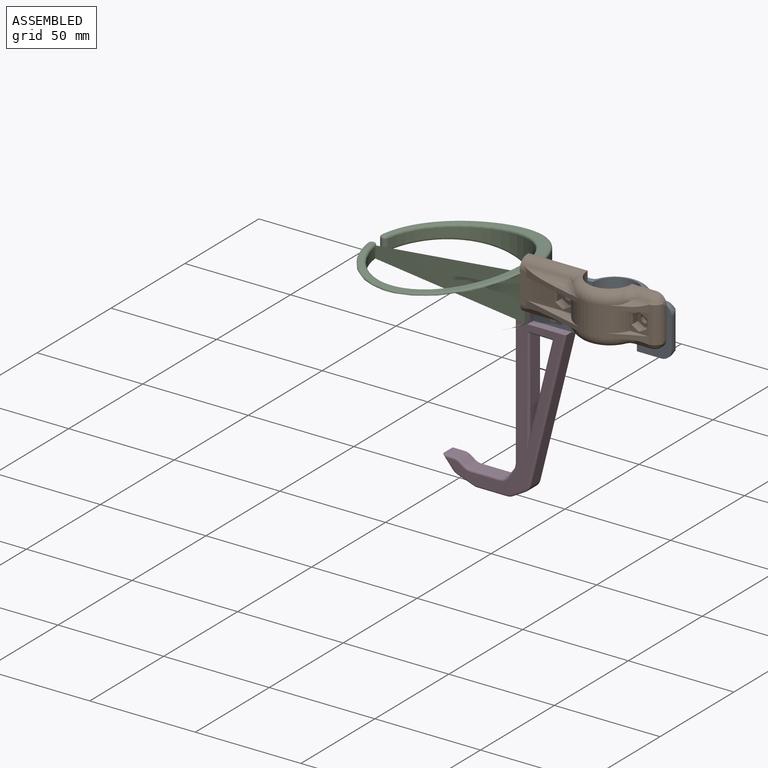
[diagram: assembled view]
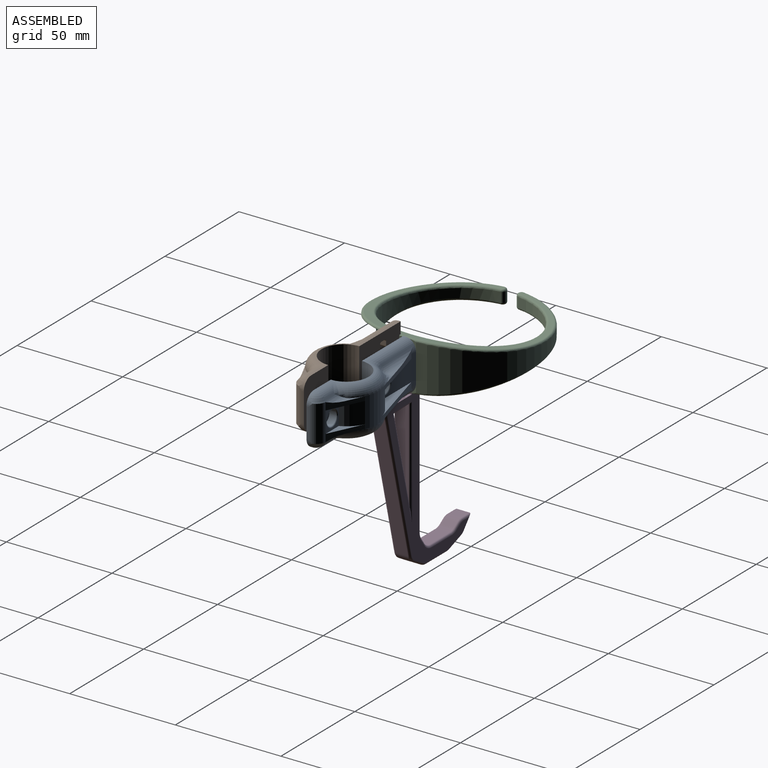
[diagram: assembled view, second angle]
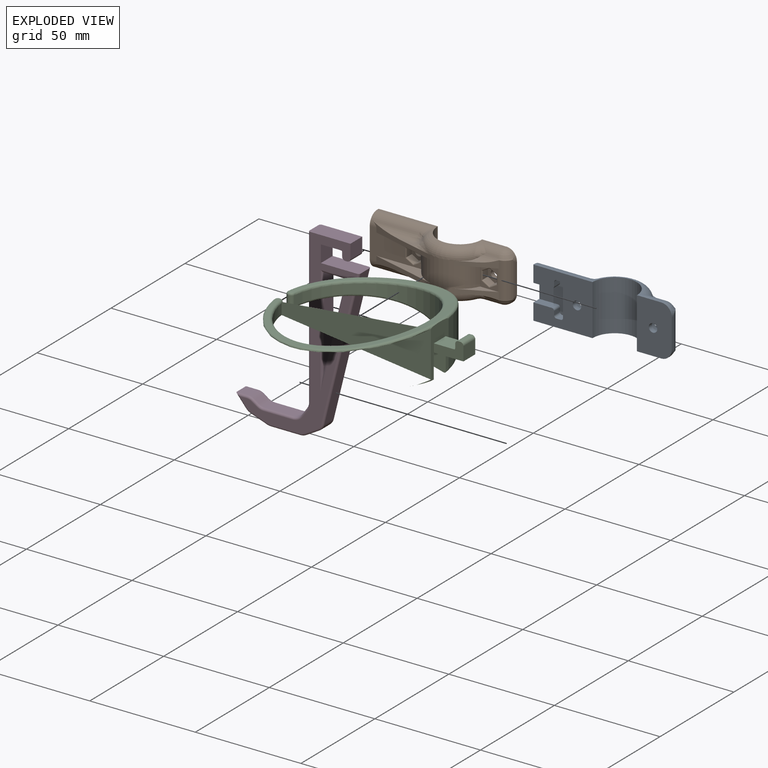
[diagram: exploded view]
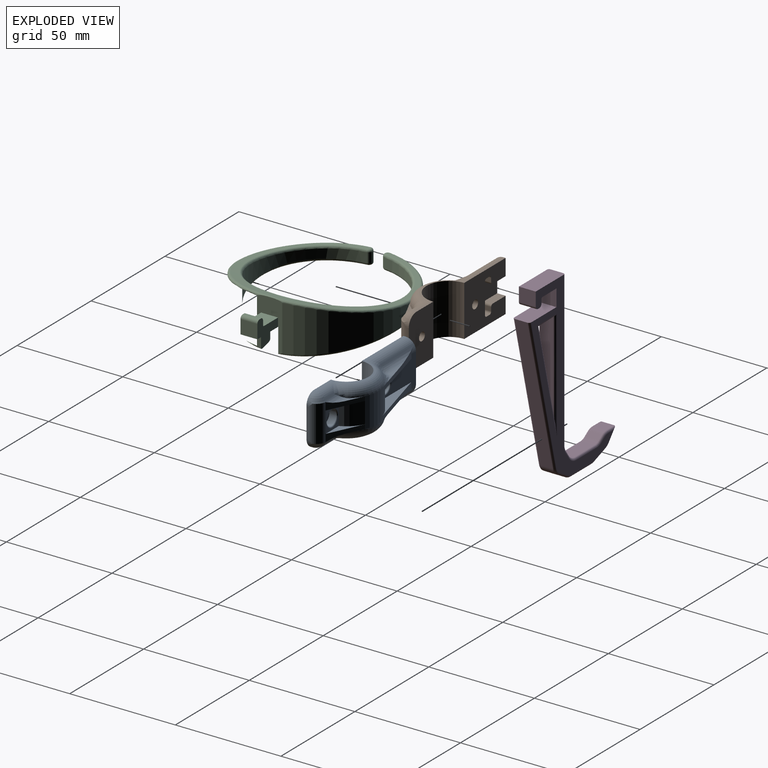
[diagram: exploded view, second angle]
ASSEMBLY  parts=3 mates=2
PART A: 76 faces, bbox 72.4x18.8x26.5 mm
  f0: cylinder r=15mm len=27.5mm, axis (0,0,-1), area 391mm2, adj f2,f4,f17,f18,f46,f49,f51,f52
  f1: cylinder r=5mm len=17.19mm, axis (0,0,1), area 127.7mm2, adj f2,f12,f19,f22,f31,f46,f48,f54
  f2: plane 10x8.25mm, normal (0,1,0), area 32.4mm2, adj f0,f1,f30,f46,f54
  f3: plane 24x6mm, normal (-1,0,0), area 99.7mm2, adj f4,f7,f8,f9,f15,f16,f32,f44
  f4: plane 24.75x14mm, normal (0,1,0), area 209.8mm2, adj f0,f3,f15,f16,f29,f51,f52,f57
  f5: cylinder r=2mm len=4mm, axis (0,1,0), area 27.6mm2, adj f9,f28
  f6: cylinder r=2mm len=4mm, axis (0,1,0), area 27.6mm2, adj f11,f26
  f7: plane 28.05x1mm, normal (0,0,1), area 28mm2, adj f3,f9,f10,f15
  f8: plane 28.05x1mm, normal (0,0,-1), area 28mm2, adj f3,f9,f10,f16
  f9: plane 28x24mm, normal (0,-1,0), area 508.7mm2, adj f3,f5,f7,f8,f10,f32,f33,f34
  f10: cylinder r=10.5mm len=24mm, axis (0,0,-1), area 790.2mm2, adj f7,f8,f9,f11,f13,f14,f15,f16
  f11: plane 24x16.5mm, normal (0,-1,0), area 372.7mm2, adj f6,f10,f12,f13,f14,f19,f22
  f12: plane 14x1mm, normal (1,0,0), area 14mm2, adj f1,f11,f19,f22
  f13: plane 11.55x1mm, normal (0,0,1), area 11.5mm2, adj f10,f11,f19,f20
  f14: plane 11.55x1mm, normal (0,0,-1), area 11.5mm2, adj f10,f11,f21,f22
  f15: cylinder r=5mm len=28.08mm, axis (1,0,0), area 136.9mm2, adj f3,f4,f7,f10,f59,f68,f70
  f16: cylinder r=5mm len=28.08mm, axis (-1,0,0), area 136.9mm2, adj f3,f4,f8,f10,f51,f71,f72
  f17: torus R=10mm, axis (0,0,1), area 201.4mm2, adj f0,f10,f53,f63,f64,f66,f67,f68
  f18: torus R=10mm, axis (0,0,1), area 201.4mm2, adj f0,f10,f47,f60,f61,f72,f74,f75
  f19: cylinder r=5mm len=5mm, axis (0,-1,0), area 9.9mm2, adj f1,f11,f12,f13,f23,f65
  f20: cylinder r=5mm len=11.58mm, axis (1,0,0), area 44.5mm2, adj f10,f13,f23,f63,f64
  f21: cylinder r=5mm len=11.58mm, axis (-1,0,0), area 44.5mm2, adj f10,f14,f24,f60,f61
  f22: cylinder r=5mm len=5mm, axis (0,1,0), area 9.9mm2, adj f1,f11,f12,f14,f24,f62
  f23: sphere r=5mm, area 23.6mm2, adj f19,f20,f65
  f24: sphere r=5mm, area 12.8mm2, adj f21,f22,f62
  f25: cylinder r=3.5mm len=7mm, axis (0,1,0), area 72.6mm2, adj f26,f30,f31
  f26: plane 7x7mm, normal (0,1,0), area 25.9mm2, adj f6,f25
  f27: cylinder r=3.5mm len=7mm, axis (0,1,0), area 72.6mm2, adj f28,f29
  f28: plane 7x7mm, normal (0,1,0), area 25.9mm2, adj f5,f27
  f29: torus R=4mm, axis (0,1,0), area 18.2mm2, adj f4,f27
  f30: torus R=4mm, axis (0,1,0), area 16.7mm2, adj f2,f25,f31
  f31: bspline ~3.6x0.89mm, area 1.5mm2, adj f1,f25,f30
  f32: plane 8.73x4mm, normal (0,0,1), area 34.9mm2, adj f3,f9,f33,f45
  f33: cylinder r=1.07mm len=4mm, axis (0,-1,0), area 6.7mm2, adj f9,f32,f34,f45
  f34: plane 4x1.86mm, normal (1,0,0), area 7.5mm2, adj f9,f33,f35,f45
  f35: cylinder r=1.07mm len=4mm, axis (0,-1,0), area 6.7mm2, adj f9,f34,f36,f45
  f36: plane 4x2.06mm, normal (0,0,1), area 8.3mm2, adj f9,f35,f37,f45
  f37: cylinder r=1.07mm len=4mm, axis (0,-1,0), area 6.7mm2, adj f9,f36,f38,f45
  f38: plane 14.26x4mm, normal (-1,0,0), area 57.1mm2, adj f9,f37,f39,f45
  f39: cylinder r=1.07mm len=4mm, axis (0,-1,0), area 6.7mm2, adj f9,f38,f40,f45
  f40: plane 4x2.06mm, normal (0,0,-1), area 8.3mm2, adj f9,f39,f41,f45
  f41: cylinder r=1.07mm len=4mm, axis (0,-1,0), area 6.7mm2, adj f9,f40,f42,f45
  f42: plane 4x1.86mm, normal (1,0,0), area 7.5mm2, adj f9,f41,f43,f45
  f43: cylinder r=1.07mm len=4mm, axis (0,-1,0), area 6.7mm2, adj f9,f42,f44,f45
  f44: plane 8.73x4mm, normal (0,0,-1), area 34.9mm2, adj f3,f9,f43,f45
  f45: plane 16.4x14mm, normal (0,-1,0), area 150.7mm2, adj f3,f32,f33,f34,f35,f36,f37,f38
  f46: plane 16.02x7.51mm, normal (0,0,1), area 26.5mm2, adj f0,f1,f2,f48,f49
  f47: plane 8.13x3.81mm, normal (0,0,-1), area 4.9mm2, adj f18,f48,f49,f61
  f48: plane 16.47x8.01mm, normal (0.42,0.91,0), area 39.5mm2, adj f1,f46,f47,f49,f61,f62
  f49: plane 2x0.1mm, normal (0.4,0.91,0), area 0.2mm2, adj f0,f46,f47,f48
  f50: plane 7.16x1.93mm, normal (0,0,-1), area 5.6mm2, adj f51,f71,f75
  f51: plane 36.47x11.69mm, normal (-0.26,0.97,0), area 72.9mm2, adj f0,f4,f16,f50,f52,f71,f74
  f52: plane 31.45x8.48mm, normal (0,0,1), area 78.7mm2, adj f0,f4,f51
  f53: plane 8.13x3.81mm, normal (0,0,1), area 4.9mm2, adj f17,f55,f56,f64
  f54: plane 16.02x7.51mm, normal (0,0,-1), area 26.5mm2, adj f0,f1,f2,f55,f56
  f55: plane 16.47x8.01mm, normal (0.42,0.91,0), area 39.5mm2, adj f1,f53,f54,f56,f64,f65
  f56: plane 2x0.1mm, normal (0.4,0.91,0), area 0.2mm2, adj f0,f53,f54,f55
  f57: plane 31.45x8.48mm, normal (0,0,-1), area 78.7mm2, adj f0,f4,f59
  f58: plane 7.16x1.93mm, normal (0,0,1), area 5.6mm2, adj f59,f67,f70
  f59: plane 36.47x11.69mm, normal (-0.26,0.97,0), area 72.9mm2, adj f0,f4,f15,f57,f58,f66,f70
  f60: bspline ~7.25x6.76mm, area 22.4mm2, adj f10,f18,f21,f61
  f61: cylinder r=5mm len=10.53mm, axis (-1,0,0), area 30.2mm2, adj f18,f21,f47,f48,f60,f62
  f62: torus R=8.66mm, axis (0,0,1), area 7.5mm2, adj f1,f22,f24,f48,f61
  f63: bspline ~7.25x6.76mm, area 22.4mm2, adj f10,f17,f20,f64
  f64: cylinder r=5mm len=10.53mm, axis (1,0,0), area 30.2mm2, adj f17,f20,f53,f55,f63,f65
  f65: torus R=8.66mm, axis (0,0,1), area 7.5mm2, adj f1,f19,f23,f55,f64
  f66: bspline ~11.02x5.82mm, area 15.7mm2, adj f17,f59,f67
  f67: torus R=18.66mm, axis (0,0,1), area 10.7mm2, adj f17,f58,f66,f69
  f68: bspline ~6.79x6.35mm, area 17mm2, adj f10,f15,f17,f69
  f69: sphere r=5mm, area 8.4mm2, adj f67,f68,f70
  f70: cylinder r=5mm len=21.88mm, axis (1,0,0), area 72.5mm2, adj f15,f58,f59,f69
  f71: cylinder r=5mm len=21.88mm, axis (-1,0,0), area 72.5mm2, adj f16,f50,f51,f73
  f72: bspline ~6.58x6.16mm, area 17mm2, adj f10,f16,f18,f73
  f73: sphere r=5mm, area 12.8mm2, adj f71,f72,f75
  f74: bspline ~11.02x5.82mm, area 15.7mm2, adj f18,f51,f75
  f75: torus R=18.66mm, axis (0,0,1), area 10.7mm2, adj f18,f50,f73,f74
PART B: 43 faces, bbox 189.8x176.4x124.4 mm
  f0: cylinder r=245.88mm len=73.21mm, axis (0,1,0), area 313mm2, adj f1,f2,f22,f42
  f1: bspline ~75.91x37.6mm, area 180mm2, adj f0,f4,f11,f21,f42
  f2: bspline ~67.62x34.44mm, area 146.1mm2, adj f0,f6,f23,f42
  f3: cylinder r=38mm len=75.25mm, axis (0,0,-1), area 1168.8mm2, adj f11,f15
  f4: cylinder r=38mm len=75.25mm, axis (0,0,-1), area 1094.4mm2, adj f1,f11,f20,f32
  f5: cylinder r=1.77mm len=4.83mm, axis (0,0,-1), area 24.5mm2, adj f20,f22,f24,f38
  f6: cylinder r=33mm len=66mm, axis (0,0,-1), area 1887.6mm2, adj f2,f14,f19,f24,f33,f40,f41,f42
  f7: cylinder r=1.77mm len=4.83mm, axis (0,0,-1), area 24.5mm2, adj f15,f17,f19,f35
  f8: plane 14x8mm, normal (0,-1,0), area 70.7mm2, adj f9,f11,f25,f26,f27,f28,f29,f30
  f9: plane 8x6.5mm, normal (1,0,0), area 52mm2, adj f8,f10,f29,f40
  f10: plane 14x8mm, normal (0,1,0), area 70.7mm2, adj f9,f11,f25,f26,f27,f28,f29,f30
  f11: plane 123.58x112.38mm, normal (1,0,0), area 149.4mm2, adj f1,f3,f4,f8,f10,f13,f25,f32
  f12: cylinder r=245.88mm len=73.21mm, axis (0,1,0), area 313mm2, adj f13,f14,f17,f41
  f13: bspline ~75.51x33.99mm, area 118.4mm2, adj f11,f12,f16,f41
  f14: bspline ~67.22x30.01mm, area 146.1mm2, adj f6,f12,f18,f41
  f15: cylinder r=1mm len=4.83mm, axis (0,0,-1), area 0.5mm2, adj f3,f7,f16,f34
  f16: sphere r=1mm, area 0.1mm2, adj f13,f15,f17
  f17: bspline ~3.55x2.2mm, area 6.4mm2, adj f7,f12,f16,f18
  f18: sphere r=1mm, area 0.1mm2, adj f14,f17,f19
  f19: cylinder r=1mm len=4.73mm, axis (0,0,1), area 0.7mm2, adj f6,f7,f18,f36
  f20: cylinder r=1mm len=4.83mm, axis (0,0,-1), area 0.5mm2, adj f4,f5,f21,f37
  f21: sphere r=1mm, area 0.1mm2, adj f1,f20,f22
  f22: bspline ~3.55x2.2mm, area 6.4mm2, adj f0,f5,f21,f23
  f23: sphere r=1mm, area 0.1mm2, adj f2,f22,f24
  f24: cylinder r=1mm len=4.73mm, axis (0,0,1), area 0.7mm2, adj f5,f6,f23,f39
  f25: plane 9.5x8mm, normal (0,0,-1), area 76mm2, adj f8,f10,f11,f30
  f26: plane 8x1.9mm, normal (-1,0,0), area 15.2mm2, adj f8,f10,f28,f30
  f27: plane 8x0.9mm, normal (0,0,-1), area 7.2mm2, adj f8,f10,f28,f29
  f28: cylinder r=1.5mm len=8mm, axis (0,1,0), area 18.8mm2, adj f8,f10,f26,f27
  f29: cylinder r=1.5mm len=8mm, axis (0,-1,0), area 18.8mm2, adj f8,f9,f10,f27
  f30: cylinder r=0.6mm len=8mm, axis (0,1,0), area 7.5mm2, adj f8,f10,f25,f26
  f31: cylinder r=245.88mm len=74.01mm, axis (0,1,0), area 663.6mm2, adj f32,f33,f35,f38
  f32: bspline ~75.96x75.66mm, area 322.9mm2, adj f4,f11,f31,f34,f37
  f33: bspline ~67.96x67.4mm, area 303mm2, adj f6,f31,f36,f39
  f34: sphere r=1mm, area 0.1mm2, adj f15,f32,f35
  f35: bspline ~3.55x2.2mm, area 6.4mm2, adj f7,f31,f34,f36
  f36: sphere r=1mm, area 0.1mm2, adj f19,f33,f35
  f37: sphere r=1mm, area 0.1mm2, adj f20,f32,f38
  f38: bspline ~3.55x2.2mm, area 6.4mm2, adj f5,f31,f37,f39
  f39: sphere r=1mm, area 0.1mm2, adj f24,f33,f38
  f40: plane 20.26x8.17mm, normal (0,0,1), area 161.7mm2, adj f6,f8,f9,f10,f11,f41,f42
  f41: plane 11.87x6.32mm, normal (0,-1,0), area 69.9mm2, adj f6,f11,f12,f13,f14,f40
  f42: plane 11.87x6.32mm, normal (0,1,0), area 69.8mm2, adj f0,f1,f2,f6,f11,f40
PART C: 75 faces, bbox 58.7x8x89 mm
  f0: plane 8x8mm, normal (1,0,0), area 64mm2, adj f2,f3,f5,f12
  f1: plane 73.18x6mm, normal (-1,0,0), area 439.1mm2, adj f6,f23,f32,f50
  f2: plane 9.5x8mm, normal (0,0,1), area 76mm2, adj f0,f3,f5,f11
  f3: plane 87.6x55.54mm, normal (0,-1,0), area 911.6mm2, adj f0,f2,f4,f6,f7,f8,f9,f10
  f4: plane 8x6.5mm, normal (1,0,0), area 52mm2, adj f3,f5,f6,f10
  f5: plane 87.6x55.54mm, normal (0,1,0), area 911.6mm2, adj f0,f2,f4,f6,f7,f8,f9,f10
  f6: plane 20x8mm, normal (0,0,-1), area 159.6mm2, adj f1,f3,f4,f5,f32,f50
  f7: plane 8x1.9mm, normal (-1,0,0), area 15.2mm2, adj f3,f5,f9,f11
  f8: plane 8x0.9mm, normal (0,0,1), area 7.2mm2, adj f3,f5,f9,f10
  f9: cylinder r=1.5mm len=8mm, axis (0,1,0), area 18.8mm2, adj f3,f5,f7,f8
  f10: cylinder r=1.5mm len=8mm, axis (0,-1,0), area 18.8mm2, adj f3,f4,f5,f8
  f11: cylinder r=0.6mm len=8mm, axis (0,1,0), area 7.5mm2, adj f2,f3,f5,f7
  f12: plane 18.18x8mm, normal (0,0,-1), area 145mm2, adj f0,f3,f5,f13,f30,f48
  f13: plane 69.23x17.14mm, normal (0.97,0,0.24), area 427.9mm2, adj f12,f14,f30,f48
  f14: cylinder r=5mm len=6mm, axis (0,1,0), area 24.1mm2, adj f13,f15,f31,f49
  f15: plane 6.19x6mm, normal (0.5,0,0.87), area 42.9mm2, adj f14,f24,f33,f51
  f16: plane 14.03x6mm, normal (0,0,1), area 84.2mm2, adj f24,f25,f37,f55
  f17: plane 7.9x6mm, normal (-0.34,0,0.94), area 50.4mm2, adj f25,f26,f41,f59
  f18: plane 6x5.69mm, normal (-0.77,0,0.64), area 44.5mm2, adj f19,f26,f45,f63
  f19: plane 6x5.5mm, normal (0,0,-1), area 33mm2, adj f18,f27,f47,f65
  f20: plane 6x2.39mm, normal (0.56,0,-0.83), area 17.3mm2, adj f27,f28,f44,f62
  f21: plane 13.65x6mm, normal (0,0,-1), area 81.9mm2, adj f28,f29,f40,f58
  f22: plane 6x3.43mm, normal (-0.82,0,-0.58), area 25.2mm2, adj f23,f29,f36,f54
  f23: cylinder r=5mm len=6mm, axis (0,1,0), area 18.4mm2, adj f1,f22,f34,f52
  f24: cylinder r=5mm len=6mm, axis (0,1,0), area 15.7mm2, adj f15,f16,f35,f53
  f25: cylinder r=5mm len=6mm, axis (0,1,0), area 10.3mm2, adj f16,f17,f39,f57
  f26: cylinder r=5mm len=6mm, axis (0,-1,0), area 15.9mm2, adj f17,f18,f43,f61
  f27: cylinder r=5mm len=6mm, axis (0,1,0), area 17.8mm2, adj f19,f20,f46,f64
  f28: cylinder r=5mm len=6mm, axis (0,-1,0), area 17.8mm2, adj f20,f21,f42,f60
  f29: cylinder r=5mm len=6mm, axis (0,-1,0), area 28.7mm2, adj f21,f22,f38,f56
  f30: cylinder r=1mm len=69.47mm, axis (-0.24,0,0.97), area 111.9mm2, adj f5,f12,f13,f31
  f31: torus R=4mm, axis (0,-1,0), area 5.9mm2, adj f5,f14,f30,f33
  f32: cylinder r=1mm len=73.18mm, axis (0,0,1), area 114.9mm2, adj f1,f5,f6,f34
  f33: cylinder r=1mm len=6.69mm, axis (-0.87,0,0.5), area 11.2mm2, adj f5,f15,f31,f35
  f34: torus R=6mm, axis (0,-1,0), area 5.2mm2, adj f5,f23,f32,f36
  f35: torus R=4mm, axis (0,-1,0), area 3.8mm2, adj f5,f24,f33,f37
  f36: cylinder r=1mm len=4.01mm, axis (0.58,0,-0.82), area 6.6mm2, adj f5,f22,f34,f38
  f37: cylinder r=1mm len=14.03mm, axis (-1,0,0), area 22mm2, adj f5,f16,f35,f39
  f38: torus R=6mm, axis (0,-1,0), area 8.1mm2, adj f5,f29,f36,f40
  f39: torus R=4mm, axis (0,-1,0), area 2.5mm2, adj f5,f25,f37,f41
  f40: cylinder r=1mm len=13.65mm, axis (1,0,0), area 21.4mm2, adj f5,f21,f38,f42
  f41: cylinder r=1mm len=8.24mm, axis (-0.94,0,-0.34), area 13.2mm2, adj f5,f17,f39,f43
  f42: torus R=6mm, axis (0,-1,0), area 5mm2, adj f5,f28,f40,f44
  f43: torus R=4mm, axis (0,-1,0), area 3.9mm2, adj f5,f26,f41,f45
  f44: cylinder r=1mm len=2.94mm, axis (0.83,0,0.56), area 4.5mm2, adj f5,f20,f42,f46
  f45: cylinder r=1mm len=6.33mm, axis (-0.64,0,-0.77), area 10.4mm2, adj f5,f18,f43,f47
  f46: torus R=4mm, axis (0,-1,0), area 4.3mm2, adj f5,f27,f44,f47
  f47: cylinder r=1mm len=5.5mm, axis (1,0,0), area 7.4mm2, adj f5,f19,f45,f46
  f48: cylinder r=1mm len=69.47mm, axis (0.24,0,-0.97), area 111.9mm2, adj f3,f12,f13,f49
  f49: torus R=4mm, axis (0,-1,0), area 5.9mm2, adj f3,f14,f48,f51
  f50: cylinder r=1mm len=73.18mm, axis (0,0,-1), area 114.9mm2, adj f1,f3,f6,f52
  f51: cylinder r=1mm len=6.69mm, axis (0.87,0,-0.5), area 11.2mm2, adj f3,f15,f49,f53
  f52: torus R=6mm, axis (0,-1,0), area 5.2mm2, adj f3,f23,f50,f54
  f53: torus R=4mm, axis (0,-1,0), area 3.8mm2, adj f3,f24,f51,f55
  f54: cylinder r=1mm len=4.01mm, axis (-0.58,0,0.82), area 6.6mm2, adj f3,f22,f52,f56
  f55: cylinder r=1mm len=14.03mm, axis (1,0,0), area 22mm2, adj f3,f16,f53,f57
  f56: torus R=6mm, axis (0,-1,0), area 8.1mm2, adj f3,f29,f54,f58
  f57: torus R=4mm, axis (0,-1,0), area 2.5mm2, adj f3,f25,f55,f59
  f58: cylinder r=1mm len=13.65mm, axis (-1,0,0), area 21.4mm2, adj f3,f21,f56,f60
  f59: cylinder r=1mm len=8.24mm, axis (0.94,0,0.34), area 13.2mm2, adj f3,f17,f57,f61
  f60: torus R=6mm, axis (0,-1,0), area 5mm2, adj f3,f28,f58,f62
  f61: torus R=4mm, axis (0,-1,0), area 3.9mm2, adj f3,f26,f59,f63
  f62: cylinder r=1mm len=2.94mm, axis (-0.83,0,-0.56), area 4.5mm2, adj f3,f20,f60,f64
  f63: cylinder r=1mm len=6.33mm, axis (0.64,0,0.77), area 10.4mm2, adj f3,f18,f61,f65
  f64: torus R=4mm, axis (0,-1,0), area 4.3mm2, adj f3,f27,f62,f65
  f65: cylinder r=1mm len=5.5mm, axis (-1,0,0), area 7.4mm2, adj f3,f19,f63,f64
  f66: plane 10.65x6mm, normal (-0.02,0,1), area 63.9mm2, adj f67,f68,f71,f72
  f67: plane 43.2x6mm, normal (1,0,0), area 259.2mm2, adj f66,f68,f69,f74
  f68: plane 43.02x10.65mm, normal (-0.97,0,-0.24), area 265.9mm2, adj f66,f67,f70,f73
  f69: cylinder r=1mm len=52.42mm, axis (0,0,1), area 73.1mm2, adj f3,f67,f70,f71
  f70: cylinder r=1mm len=52.44mm, axis (0.24,0,-0.97), area 75mm2, adj f3,f68,f69,f71
  f71: cylinder r=1mm len=12.94mm, axis (-1,0,-0.02), area 18mm2, adj f3,f66,f69,f70
  f72: cylinder r=1mm len=12.94mm, axis (-1,0,-0.02), area 18mm2, adj f5,f66,f73,f74
  f73: cylinder r=1mm len=52.44mm, axis (0.24,0,-0.97), area 75mm2, adj f5,f68,f72,f74
  f74: cylinder r=1mm len=52.42mm, axis (0,0,1), area 73.1mm2, adj f5,f67,f72,f73
PLACE A t=(54.08,-5.05,-28.29)mm
PLACE B rot(axis=(1,0,0),180deg) t=(2.58,-5.05,-16.29)mm
PLACE C rot(axis=(1,0,0),180deg) t=(2.58,-5.05,-16.29)mm
MATE fastened B.f8 <-> A.f45  axis (0,1,0) through (2.58,-1.05,-16.29)mm
MATE fastened C.f4 <-> A.f38  axis (1,0,0) through (2.58,-1.05,-16.29)mm
